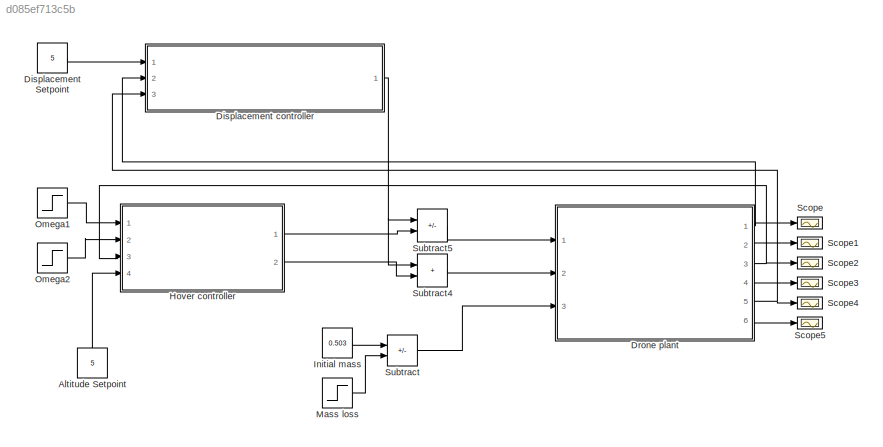
MODEL slx_d085ef713c5b
KIND model
CONFIG AbsTol = auto
CONFIG EnableMultiTasking = off
CONFIG FixedStep = auto
CONFIG MaxStep = auto
CONFIG MinStep = auto
CONFIG RelTol = 1e-3
CONFIG SampleTimeConstraint = Unconstrained
CONFIG SolverName = VariableStepAuto
CONFIG StartTime = 0.0
CONFIG StopTime = 40
BLOCK [Constant] Altitude Setpoint
  NameLocation = right
  Value = 5
BLOCK [Constant] Displacement Setpoint
  Value = 5
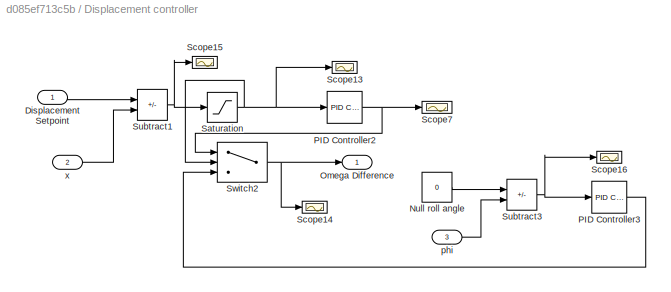
BLOCK [SubSystem] Displacement controller
  Ports = [3, 1]
BLOCK [Inport] Displacement controller/Displacement Setpoint
BLOCK [Constant] Displacement controller/Null roll angle
  Value = 0
BLOCK [Outport] Displacement controller/Omega Difference
BLOCK [Reference] Displacement controller/PID Controller2  REF=slpidlib/PID Controller
  Ports = [1, 1]
  SourceBlock = slpidlib/PID Controller
  SourceType = PID 1dof
BLOCK [Reference] Displacement controller/PID Controller3  REF=slpidlib/PID Controller
  Ports = [1, 1]
  SourceBlock = slpidlib/PID Controller
  SourceType = PID 1dof
BLOCK [Saturate] Displacement controller/Saturation
  LowerLimit = 0
  UpperLimit = 1000000
BLOCK [Scope] Displacement controller/Scope13
  Floating = off
  NumInputPorts = 1
  Ports = [1]
  ScopeSpecificationString = Simulink.scopes.TimeScopeBlockCfg('CurrentConfiguration', extmgr.ConfigurationSet(extmgr.Configuration('Core','General UI',true),extmgr.Configuration('Core','Source UI',true),extmgr.Configuration('Sources','WiredSimulink',true,'DataLoggingVariableName','ScopeData14'),extmgr.Configuration('Visuals','Time Domain',true,'SerializedDisplays',{struct('MinYLimReal','-0.625','MaxYLimReal','5.625','YLabelR...<+1430ch>
BLOCK [Scope] Displacement controller/Scope14
  Floating = off
  NumInputPorts = 1
  Ports = [1]
  ScopeSpecificationString = Simulink.scopes.TimeScopeBlockCfg('CurrentConfiguration', extmgr.ConfigurationSet(extmgr.Configuration('Core','General UI',true),extmgr.Configuration('Core','Source UI',true),extmgr.Configuration('Sources','WiredSimulink',true,'DataLoggingVariableName','ScopeData17'),extmgr.Configuration('Visuals','Time Domain',true,'SerializedDisplays',{struct('MinYLimReal','-5564.63738','MaxYLimReal','45065.5152...<+1457ch>
BLOCK [Scope] Displacement controller/Scope15
  Floating = off
  NumInputPorts = 1
  Ports = [1]
  ScopeSpecificationString = Simulink.scopes.TimeScopeBlockCfg('CurrentConfiguration', extmgr.ConfigurationSet(extmgr.Configuration('Core','General UI',true),extmgr.Configuration('Core','Source UI',true),extmgr.Configuration('Sources','WiredSimulink',true,'DataLoggingVariableName','ScopeData18'),extmgr.Configuration('Visuals','Time Domain',true,'SerializedDisplays',{struct('MinYLimReal','-0.67971','MaxYLimReal','5.63108','YLa...<+1441ch>
BLOCK [Scope] Displacement controller/Scope16
  Floating = off
  NumInputPorts = 1
  Ports = [1]
  ScopeSpecificationString = Simulink.scopes.TimeScopeBlockCfg('CurrentConfiguration', extmgr.ConfigurationSet(extmgr.Configuration('Core','General UI',true),extmgr.Configuration('Core','Source UI',true),extmgr.Configuration('Sources','WiredSimulink',true,'DataLoggingVariableName','ScopeData19'),extmgr.Configuration('Visuals','Time Domain',true,'SerializedDisplays',{struct('MinYLimReal','-0.0467','MaxYLimReal','0.42031','YLab...<+1439ch>
BLOCK [Scope] Displacement controller/Scope7
  Floating = off
  NumInputPorts = 1
  Ports = [1]
  ScopeSpecificationString = Simulink.scopes.TimeScopeBlockCfg('CurrentConfiguration', extmgr.ConfigurationSet(extmgr.Configuration('Core','General UI',true),extmgr.Configuration('Core','Source UI',true),extmgr.Configuration('Sources','WiredSimulink',true,'DataLoggingVariableName','ScopeData16'),extmgr.Configuration('Visuals','Time Domain',true,'SerializedDisplays',{struct('MinYLimReal','-5564.63738','MaxYLimReal','45065.5152...<+1473ch>
BLOCK [Sum] Displacement controller/Subtract1
  IconShape = rectangular
  Inputs = +-
  Ports = [2, 1]
BLOCK [Sum] Displacement controller/Subtract3
  IconShape = rectangular
  Inputs = +-
  Ports = [2, 1]
BLOCK [Switch] Displacement controller/Switch2
  Criteria = u2 ~= 0
  InputSameDT = off
  SaturateOnIntegerOverflow = off
BLOCK [Inport] Displacement controller/phi
  Port = 3
BLOCK [Inport] Displacement controller/x
  Port = 2
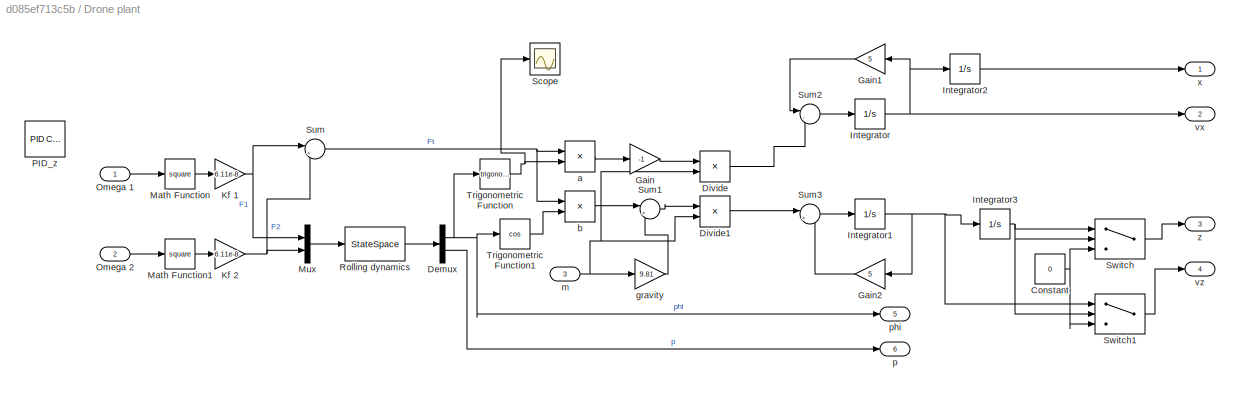
BLOCK [SubSystem] Drone plant
  Ports = [3, 6]
BLOCK [Constant] Drone plant/Constant
  Value = 0
BLOCK [Demux] Drone plant/Demux
  Outputs = 2
  Ports = [1, 2]
BLOCK [Product] Drone plant/Divide
  Inputs = */
  Ports = [2, 1]
BLOCK [Product] Drone plant/Divide1
  Inputs = */
  Ports = [2, 1]
BLOCK [Gain] Drone plant/Gain
  Gain = -1
BLOCK [Gain] Drone plant/Gain1
  Gain = 5
BLOCK [Gain] Drone plant/Gain2
  Gain = 5
BLOCK [Integrator] Drone plant/Integrator
  Ports = [1, 1]
BLOCK [Integrator] Drone plant/Integrator1
  Ports = [1, 1]
BLOCK [Integrator] Drone plant/Integrator2
  Ports = [1, 1]
BLOCK [Integrator] Drone plant/Integrator3
  Ports = [1, 1]
BLOCK [Gain] Drone plant/Kf 1
  Gain = 6.11e-8
BLOCK [Gain] Drone plant/Kf 2
  Gain = 6.11e-8
BLOCK [Math] Drone plant/Math Function
  Operator = square
  Ports = [1, 1]
BLOCK [Math] Drone plant/Math Function1
  Operator = square
  Ports = [1, 1]
BLOCK [Mux] Drone plant/Mux
  DisplayOption = bar
  Inputs = 2
  Ports = [2, 1]
BLOCK [Inport] Drone plant/Omega 1
BLOCK [Inport] Drone plant/Omega 2
  Port = 2
BLOCK [Reference] Drone plant/PID_z  REF=slpidlib/PID Controller
  Ports = [1, 1]
  SourceBlock = slpidlib/PID Controller
  SourceType = PID 1dof
BLOCK [StateSpace] Drone plant/Rolling dynamics
  A = [0 1; 0 -1800]
  B = [0 0; 110.8 -110.8]
  C = [1 0; 0 1]
  D = [0 0; 0 0]
  InitialCondition = 0
  Ports = [1, 1]
BLOCK [Scope] Drone plant/Scope
  Floating = off
  NumInputPorts = 1
  Ports = [1]
  ScopeSpecificationString = Simulink.scopes.TimeScopeBlockCfg('CurrentConfiguration', extmgr.ConfigurationSet(extmgr.Configuration('Core','General UI',true),extmgr.Configuration('Core','Source UI',true),extmgr.Configuration('Sources','WiredSimulink',true,'DataLoggingVariableName','ScopeData1'),extmgr.Configuration('Visuals','Time Domain',true,'SerializedDisplays',{struct('MinYLimReal','-0.4106','MaxYLimReal','0.04562','YLabe...<+1407ch>
BLOCK [Sum] Drone plant/Sum
  Inputs = |++
  Ports = [2, 1]
BLOCK [Sum] Drone plant/Sum1
  Inputs = |+-
  Ports = [2, 1]
BLOCK [Sum] Drone plant/Sum2
  Inputs = |-+
  NameLocation = top
  Ports = [2, 1]
BLOCK [Sum] Drone plant/Sum3
  Inputs = |+-
  NameLocation = top
  Ports = [2, 1]
BLOCK [Switch] Drone plant/Switch
  Criteria = u2 > Threshold
  InputSameDT = off
  SaturateOnIntegerOverflow = off
BLOCK [Switch] Drone plant/Switch1
  Criteria = u2 > Threshold
  InputSameDT = off
  SaturateOnIntegerOverflow = off
BLOCK [Trigonometry] Drone plant/Trigonometric Function
  Ports = [1, 1]
BLOCK [Trigonometry] Drone plant/Trigonometric Function1
  Operator = cos
  Ports = [1, 1]
BLOCK [Product] Drone plant/a
  Ports = [2, 1]
BLOCK [Product] Drone plant/b
  Ports = [2, 1]
BLOCK [Gain] Drone plant/gravity
  Gain = 9.81
BLOCK [Inport] Drone plant/m
  Port = 3
BLOCK [Outport] Drone plant/p
  Port = 6
BLOCK [Outport] Drone plant/phi
  Port = 5
BLOCK [Outport] Drone plant/vx
  Port = 2
BLOCK [Outport] Drone plant/vz
  Port = 4
BLOCK [Outport] Drone plant/x
BLOCK [Outport] Drone plant/z
  Port = 3
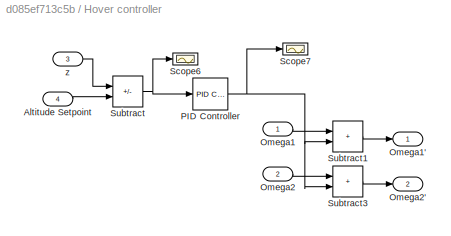
BLOCK [SubSystem] Hover controller
  Ports = [4, 2]
BLOCK [Inport] Hover controller/Altitude Setpoint
  Port = 4
BLOCK [Inport] Hover controller/Omega1
BLOCK [Outport] Hover controller/Omega1'
BLOCK [Inport] Hover controller/Omega2
  Port = 2
BLOCK [Outport] Hover controller/Omega2'
  Port = 2
BLOCK [Reference] Hover controller/PID Controller  REF=slpidlib/PID Controller
  Ports = [1, 1]
  SourceBlock = slpidlib/PID Controller
  SourceType = PID 1dof
BLOCK [Scope] Hover controller/Scope6
  Floating = off
  NumInputPorts = 1
  Ports = [1]
  ScopeSpecificationString = Simulink.scopes.TimeScopeBlockCfg('CurrentConfiguration', extmgr.ConfigurationSet(extmgr.Configuration('Core','General UI',true),extmgr.Configuration('Core','Source UI',true),extmgr.Configuration('Sources','WiredSimulink',true,'DataLoggingVariableName','ScopeData7'),extmgr.Configuration('Visuals','Time Domain',true,'SerializedDisplays',{struct('MinYLimReal','-0.62886','MaxYLimReal','5.62543','YLab...<+1421ch>
BLOCK [Scope] Hover controller/Scope7
  Floating = off
  NumInputPorts = 1
  Ports = [1]
  ScopeSpecificationString = Simulink.scopes.TimeScopeBlockCfg('CurrentConfiguration', extmgr.ConfigurationSet(extmgr.Configuration('Core','General UI',true),extmgr.Configuration('Core','Source UI',true),extmgr.Configuration('Sources','WiredSimulink',true,'DataLoggingVariableName','ScopeData8'),extmgr.Configuration('Visuals','Time Domain',true,'SerializedDisplays',{struct('MinYLimReal','-13791.69886','MaxYLimReal','120976.855...<+1440ch>
BLOCK [Sum] Hover controller/Subtract
  IconShape = rectangular
  Inputs = -+
  Ports = [2, 1]
BLOCK [Sum] Hover controller/Subtract1
  IconShape = rectangular
  Ports = [2, 1]
BLOCK [Sum] Hover controller/Subtract3
  IconShape = rectangular
  Ports = [2, 1]
BLOCK [Inport] Hover controller/z
  Port = 3
BLOCK [Constant] Initial mass
  Value = 0.503
BLOCK [Step] Mass loss
  After = 0.3
  SampleTime = 0
  Time = 15
BLOCK [Step] Omega1
  After = 6454.5
  SampleTime = 0
  Time = 0
BLOCK [Step] Omega2
  After = 6454.5
  SampleTime = 0
  Time = 0
BLOCK [Scope] Scope
  Floating = off
  NumInputPorts = 1
  Ports = [1]
  ScopeSpecificationString = Simulink.scopes.TimeScopeBlockCfg('CurrentConfiguration', extmgr.ConfigurationSet(extmgr.Configuration('Core','General UI',true),extmgr.Configuration('Core','Source UI',true),extmgr.Configuration('Sources','WiredSimulink',true,'DataLoggingVariableName','ScopeData1'),extmgr.Configuration('Visuals','Time Domain',true,'SerializedDisplays',{struct('MinYLimReal','-0.63108','MaxYLimReal','5.67971','YLab...<+1404ch>
BLOCK [Scope] Scope1
  Floating = off
  NumInputPorts = 1
  Ports = [1]
  ScopeSpecificationString = Simulink.scopes.TimeScopeBlockCfg('CurrentConfiguration', extmgr.ConfigurationSet(extmgr.Configuration('Core','General UI',true),extmgr.Configuration('Core','Source UI',true),extmgr.Configuration('Sources','WiredSimulink',true,'DataLoggingVariableName','ScopeData2'),extmgr.Configuration('Visuals','Time Domain',true,'SerializedDisplays',{struct('MinYLimReal','-0.41819','MaxYLimReal','3.7637','YLabe...<+1401ch>
BLOCK [Scope] Scope2
  Floating = off
  NumInputPorts = 1
  Ports = [1]
  ScopeSpecificationString = Simulink.scopes.TimeScopeBlockCfg('CurrentConfiguration', extmgr.ConfigurationSet(extmgr.Configuration('Core','General UI',true),extmgr.Configuration('Core','Source UI',true),extmgr.Configuration('Sources','WiredSimulink',true,'DataLoggingVariableName','ScopeData3'),extmgr.Configuration('Visuals','Time Domain',true,'SerializedDisplays',{struct('MinYLimReal','-0.66269','MaxYLimReal','5.96418','YLab...<+1409ch>
BLOCK [Scope] Scope3
  Floating = off
  NumInputPorts = 1
  Ports = [1]
  ScopeSpecificationString = Simulink.scopes.TimeScopeBlockCfg('CurrentConfiguration', extmgr.ConfigurationSet(extmgr.Configuration('Core','General UI',true),extmgr.Configuration('Core','Source UI',true),extmgr.Configuration('Sources','WiredSimulink',true,'DataLoggingVariableName','ScopeData4'),extmgr.Configuration('Visuals','Time Domain',true,'SerializedDisplays',{struct('MinYLimReal','-2.26075','MaxYLimReal','20.31039','YLa...<+1409ch>
BLOCK [Scope] Scope4
  Floating = off
  NumInputPorts = 1
  Ports = [1]
  ScopeSpecificationString = Simulink.scopes.TimeScopeBlockCfg('CurrentConfiguration', extmgr.ConfigurationSet(extmgr.Configuration('Core','General UI',true),extmgr.Configuration('Core','Source UI',true),extmgr.Configuration('Sources','WiredSimulink',true,'DataLoggingVariableName','ScopeData5'),extmgr.Configuration('Visuals','Time Domain',true,'SerializedDisplays',{struct('MinYLimReal','-0.42031','MaxYLimReal','0.0467','YLabe...<+1405ch>
BLOCK [Scope] Scope5
  Floating = off
  NumInputPorts = 1
  Ports = [1]
  ScopeSpecificationString = Simulink.scopes.TimeScopeBlockCfg('CurrentConfiguration', extmgr.ConfigurationSet(extmgr.Configuration('Core','General UI',true),extmgr.Configuration('Core','Source UI',true),extmgr.Configuration('Sources','WiredSimulink',true,'DataLoggingVariableName','ScopeData6'),extmgr.Configuration('Visuals','Time Domain',true,'SerializedDisplays',{struct('MinYLimReal','-59.2554','MaxYLimReal','6.63738','YLab...<+1404ch>
BLOCK [Sum] Subtract
  IconShape = rectangular
  Inputs = +-
  Ports = [2, 1]
BLOCK [Sum] Subtract4
  IconShape = rectangular
  Ports = [2, 1]
BLOCK [Sum] Subtract5
  IconShape = rectangular
  Inputs = -+
  Ports = [2, 1]
LINE Altitude Setpoint:1 -> Hover controller:4
LINE Displacement Setpoint:1 -> Displacement controller:1
LINE Displacement controller/Displacement Setpoint:1 -> Displacement controller/Subtract1:1
LINE Displacement controller/Null roll angle:1 -> Displacement controller/Subtract3:1
NET Displacement controller/PID Controller2:1 -> Displacement controller/Scope7:1, Displacement controller/Switch2:1
LINE Displacement controller/PID Controller3:1 -> Displacement controller/Switch2:3
NET Displacement controller/Saturation:1 -> Displacement controller/PID Controller2:1, Displacement controller/Scope13:1, Displacement controller/Switch2:2
NET Displacement controller/Subtract1:1 -> Displacement controller/Saturation:1, Displacement controller/Scope15:1
NET Displacement controller/Subtract3:1 -> Displacement controller/PID Controller3:1, Displacement controller/Scope16:1
NET Displacement controller/Switch2:1 -> Displacement controller/Omega Difference:1, Displacement controller/Scope14:1
LINE Displacement controller/phi:1 -> Displacement controller/Subtract3:2
LINE Displacement controller/x:1 -> Displacement controller/Subtract1:2
NET Displacement controller:1 -> Subtract4:1, Subtract5:1
NET Drone plant/Constant:1 -> Drone plant/Switch1:3, Drone plant/Switch:3
NET Drone plant/Demux:1 -> Drone plant/Trigonometric Function1:1, Drone plant/Trigonometric Function:1, Drone plant/phi:1
LINE Drone plant/Demux:2 -> Drone plant/p:1
LINE Drone plant/Divide1:1 -> Drone plant/Sum3:1
LINE Drone plant/Divide:1 -> Drone plant/Sum2:2
LINE Drone plant/Gain1:1 -> Drone plant/Sum2:1
LINE Drone plant/Gain2:1 -> Drone plant/Sum3:2
LINE Drone plant/Gain:1 -> Drone plant/Divide:1
NET Drone plant/Integrator1:1 -> Drone plant/Gain2:1, Drone plant/Integrator3:1, Drone plant/Switch1:1
LINE Drone plant/Integrator2:1 -> Drone plant/x:1
NET Drone plant/Integrator3:1 -> Drone plant/Switch1:2, Drone plant/Switch:1, Drone plant/Switch:2
NET Drone plant/Integrator:1 -> Drone plant/Gain1:1, Drone plant/Integrator2:1, Drone plant/vx:1
NET Drone plant/Kf 1:1 -> Drone plant/Mux:1, Drone plant/Sum:1
NET Drone plant/Kf 2:1 -> Drone plant/Mux:2, Drone plant/Sum:2
LINE Drone plant/Math Function1:1 -> Drone plant/Kf 2:1
LINE Drone plant/Math Function:1 -> Drone plant/Kf 1:1
LINE Drone plant/Mux:1 -> Drone plant/Rolling dynamics:1
LINE Drone plant/Omega 1:1 -> Drone plant/Math Function:1
LINE Drone plant/Omega 2:1 -> Drone plant/Math Function1:1
LINE Drone plant/Rolling dynamics:1 -> Drone plant/Demux:1
LINE Drone plant/Sum1:1 -> Drone plant/Divide1:1
LINE Drone plant/Sum2:1 -> Drone plant/Integrator:1
LINE Drone plant/Sum3:1 -> Drone plant/Integrator1:1
NET Drone plant/Sum:1 -> Drone plant/a:1, Drone plant/b:1
LINE Drone plant/Switch1:1 -> Drone plant/vz:1
LINE Drone plant/Switch:1 -> Drone plant/z:1
LINE Drone plant/Trigonometric Function1:1 -> Drone plant/b:2
NET Drone plant/Trigonometric Function:1 -> Drone plant/Scope:1, Drone plant/a:2
LINE Drone plant/a:1 -> Drone plant/Gain:1
LINE Drone plant/b:1 -> Drone plant/Sum1:1
LINE Drone plant/gravity:1 -> Drone plant/Sum1:2
NET Drone plant/m:1 -> Drone plant/Divide1:2, Drone plant/Divide:2, Drone plant/gravity:1
NET Drone plant:1 -> Displacement controller:2, Scope:1
LINE Drone plant:2 -> Scope1:1
NET Drone plant:3 -> Hover controller:3, Scope2:1
LINE Drone plant:4 -> Scope3:1
NET Drone plant:5 -> Displacement controller:3, Scope4:1
LINE Drone plant:6 -> Scope5:1
LINE Hover controller/Altitude Setpoint:1 -> Hover controller/Subtract:2
LINE Hover controller/Omega1:1 -> Hover controller/Subtract1:1
LINE Hover controller/Omega2:1 -> Hover controller/Subtract3:1
NET Hover controller/PID Controller:1 -> Hover controller/Scope7:1, Hover controller/Subtract1:2, Hover controller/Subtract3:2
LINE Hover controller/Subtract1:1 -> Hover controller/Omega1':1
LINE Hover controller/Subtract3:1 -> Hover controller/Omega2':1
NET Hover controller/Subtract:1 -> Hover controller/PID Controller:1, Hover controller/Scope6:1
LINE Hover controller/z:1 -> Hover controller/Subtract:1
LINE Hover controller:1 -> Subtract5:2
LINE Hover controller:2 -> Subtract4:2
LINE Initial mass:1 -> Subtract:1
LINE Mass loss:1 -> Subtract:2
LINE Omega1:1 -> Hover controller:1
LINE Omega2:1 -> Hover controller:2
LINE Subtract4:1 -> Drone plant:2
LINE Subtract5:1 -> Drone plant:1
LINE Subtract:1 -> Drone plant:3
note: NET lines group one-source signal fan-out (src -> all destinations, sorted); 1:1 wires keep LINE
